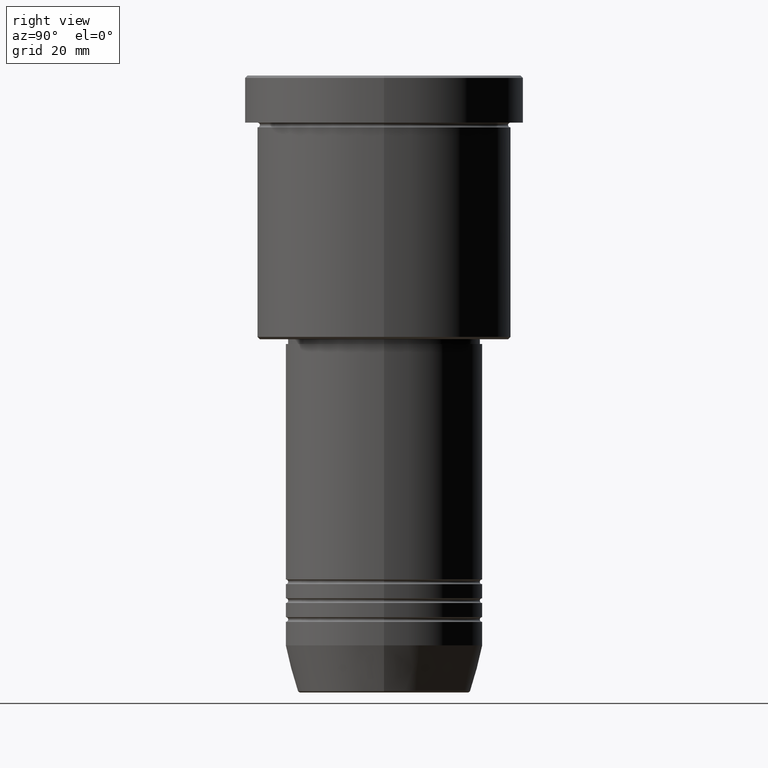
[diagram: clean part render]
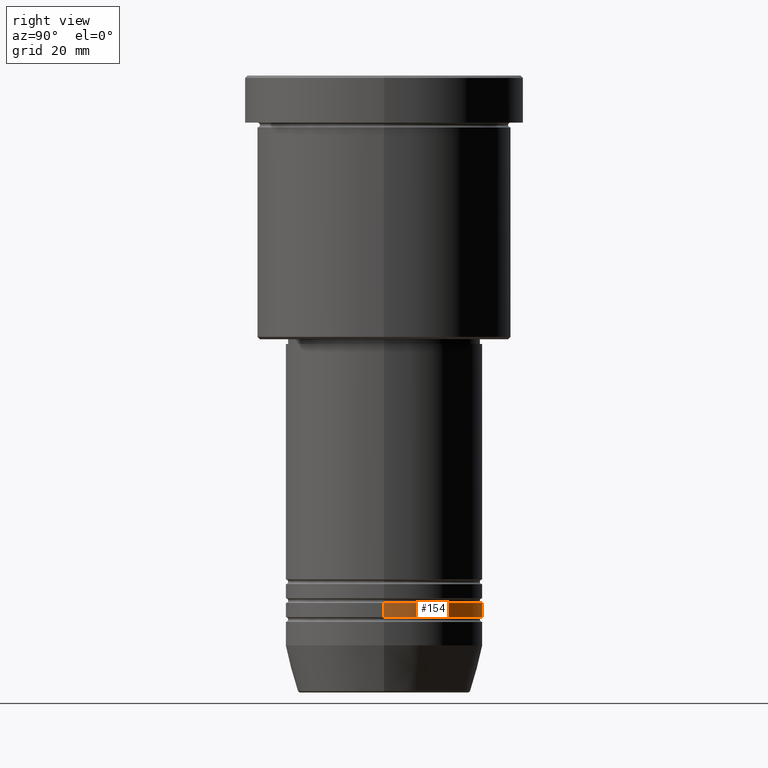
[diagram: same view with one face highlighted and labeled with its STEP entity id]
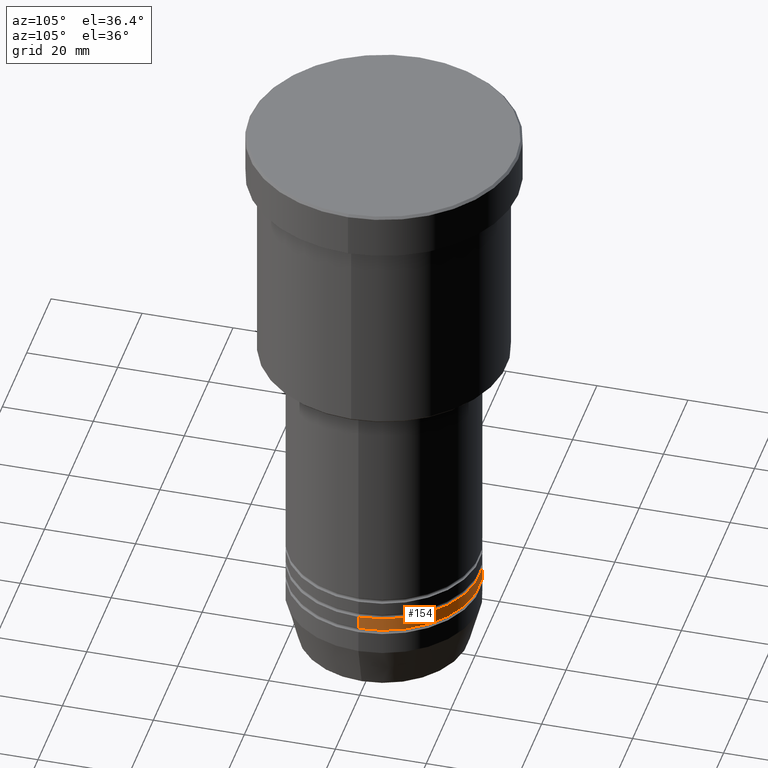
[diagram: same view with one face highlighted and labeled with its STEP entity id]
A machine part, right view. The second image highlights one B-rep face of the part: STEP entity #154.
A second angle (auxiliary view) of the same face is appended — the face is thin or edge-on in the first view.
In plain terms, the highlighted cylindrical surface (partial cylindrical patch) has radius 21 mm, axis along (-0, -0, 1).
Its self-contained STEP definition (entity closure, byte-faithful):
#13 = CYLINDRICAL_SURFACE ( 'NONE', #230, 21.00000000000000000 ) ;
#19 = FACE_OUTER_BOUND ( 'NONE', #380, .T. ) ;
#60 = CARTESIAN_POINT ( 'NONE',  ( 21.00000000000000000, 0.000000000000000000, -111.9999999999998721 ) ) ;
#102 = CARTESIAN_POINT ( 'NONE',  ( 0.000000000000000000, 0.000000000000000000, 0.000000000000000000 ) ) ;
#110 = DIRECTION ( 'NONE',  ( -0.000000000000000000, -0.000000000000000000, 1.000000000000000000 ) ) ;
#154 = ADVANCED_FACE ( 'NONE', ( #19 ), #13, .T. ) ;
#197 = CIRCLE ( 'NONE', #587, 21.00000000000000000 ) ;
#230 = AXIS2_PLACEMENT_3D ( 'NONE', #102, #572, #651 ) ;
#262 = DIRECTION ( 'NONE',  ( -0.000000000000000000, -0.000000000000000000, 1.000000000000000000 ) ) ;
#270 = DIRECTION ( 'NONE',  ( 1.000000000000000000, 0.000000000000000000, 0.000000000000000000 ) ) ;
#275 = CARTESIAN_POINT ( 'NONE',  ( 21.00000000000000000, 0.000000000000000000, 0.000000000000000000 ) ) ;
#292 = EDGE_CURVE ( 'NONE', #957, #821, #197, .T. ) ;
#307 = CIRCLE ( 'NONE', #513, 21.00000000000000000 ) ;
#348 = DIRECTION ( 'NONE',  ( -0.000000000000000000, -0.000000000000000000, 1.000000000000000000 ) ) ;
#380 = EDGE_LOOP ( 'NONE', ( #1150, #634, #1102, #604 ) ) ;
#513 = AXIS2_PLACEMENT_3D ( 'NONE', #744, #803, #628 ) ;
#518 = EDGE_CURVE ( 'NONE', #704, #957, #822, .T. ) ;
#537 = VECTOR ( 'NONE', #110, 1000.000000000000000 ) ;
#542 = EDGE_CURVE ( 'NONE', #704, #646, #307, .T. ) ;
#572 = DIRECTION ( 'NONE',  ( -0.000000000000000000, -0.000000000000000000, 1.000000000000000000 ) ) ;
#587 = AXIS2_PLACEMENT_3D ( 'NONE', #1082, #262, #270 ) ;
#594 = VECTOR ( 'NONE', #348, 1000.000000000000000 ) ;
#604 = ORIENTED_EDGE ( 'NONE', *, *, #518, .F. ) ;
#624 = EDGE_CURVE ( 'NONE', #646, #821, #763, .T. ) ;
#628 = DIRECTION ( 'NONE',  ( 1.000000000000000000, 0.000000000000000000, 0.000000000000000000 ) ) ;
#634 = ORIENTED_EDGE ( 'NONE', *, *, #624, .T. ) ;
#646 = VERTEX_POINT ( 'NONE', #938 ) ;
#651 = DIRECTION ( 'NONE',  ( 1.000000000000000000, 0.000000000000000000, 0.000000000000000000 ) ) ;
#704 = VERTEX_POINT ( 'NONE', #841 ) ;
#744 = CARTESIAN_POINT ( 'NONE',  ( 0.000000000000000000, 0.000000000000000000, -114.9999999999998863 ) ) ;
#750 = CARTESIAN_POINT ( 'NONE',  ( -21.00000000000000000, 2.571758278209441661E-15, 0.000000000000000000 ) ) ;
#763 = LINE ( 'NONE', #750, #537 ) ;
#803 = DIRECTION ( 'NONE',  ( -0.000000000000000000, -0.000000000000000000, 1.000000000000000000 ) ) ;
#821 = VERTEX_POINT ( 'NONE', #1072 ) ;
#822 = LINE ( 'NONE', #275, #594 ) ;
#841 = CARTESIAN_POINT ( 'NONE',  ( 21.00000000000000000, 0.000000000000000000, -114.9999999999998863 ) ) ;
#938 = CARTESIAN_POINT ( 'NONE',  ( -21.00000000000000000, 2.571758278209441661E-15, -114.9999999999998863 ) ) ;
#957 = VERTEX_POINT ( 'NONE', #60 ) ;
#1072 = CARTESIAN_POINT ( 'NONE',  ( -21.00000000000000000, 2.571758278209441661E-15, -111.9999999999998721 ) ) ;
#1082 = CARTESIAN_POINT ( 'NONE',  ( 0.000000000000000000, 0.000000000000000000, -111.9999999999998721 ) ) ;
#1102 = ORIENTED_EDGE ( 'NONE', *, *, #292, .F. ) ;
#1150 = ORIENTED_EDGE ( 'NONE', *, *, #542, .T. ) ;